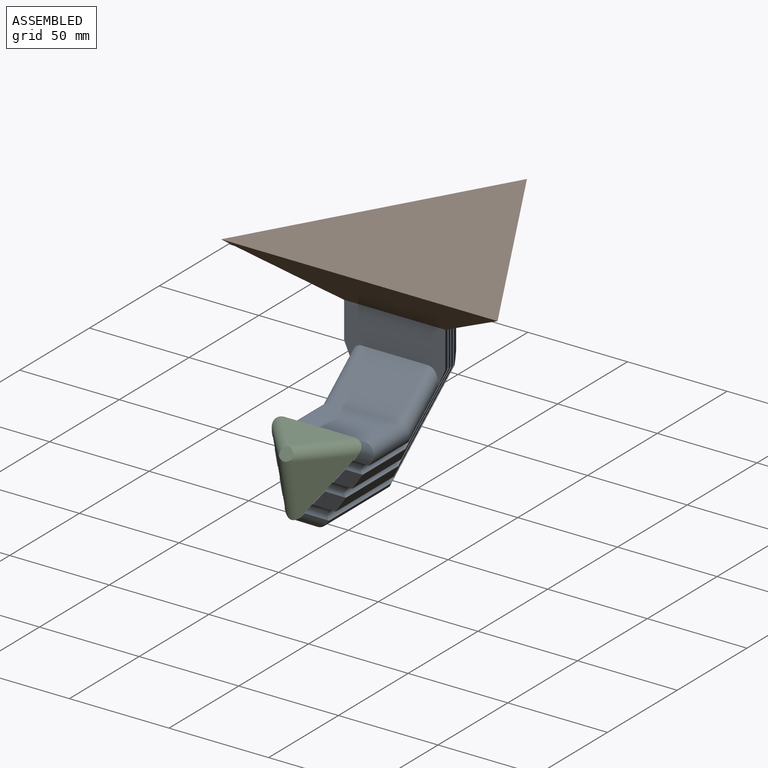
[diagram: assembled view]
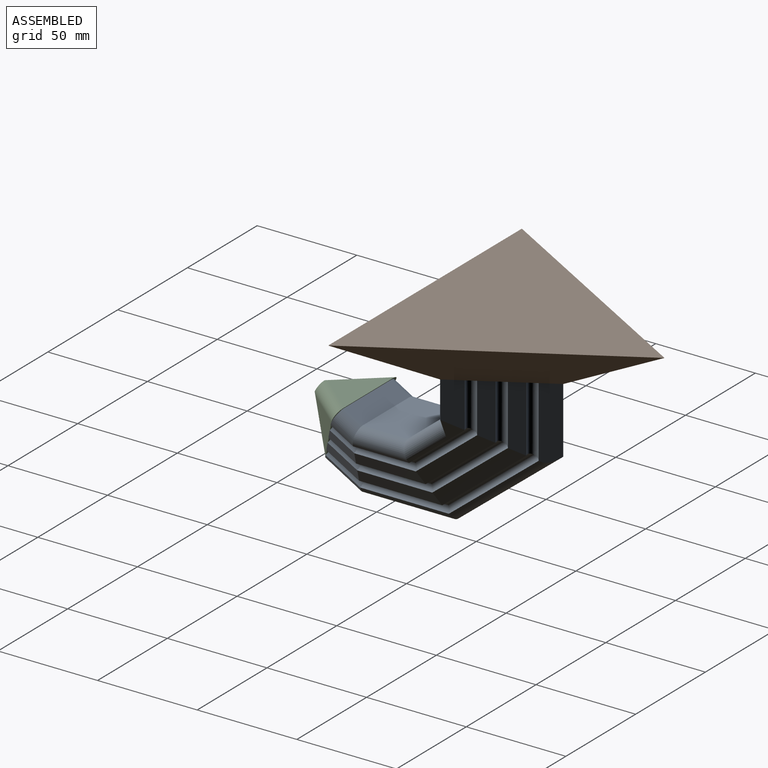
[diagram: assembled view, second angle]
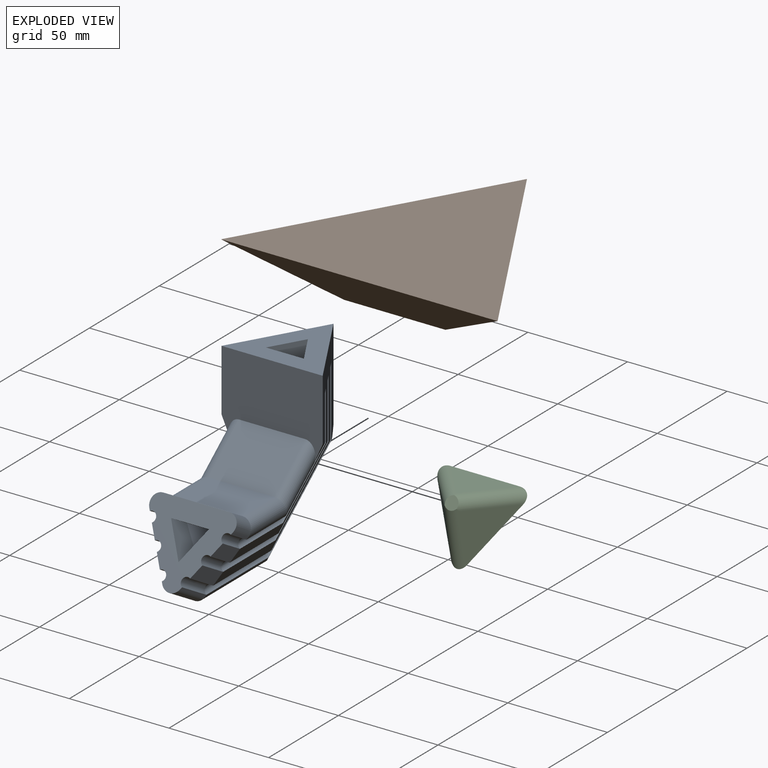
[diagram: exploded view]
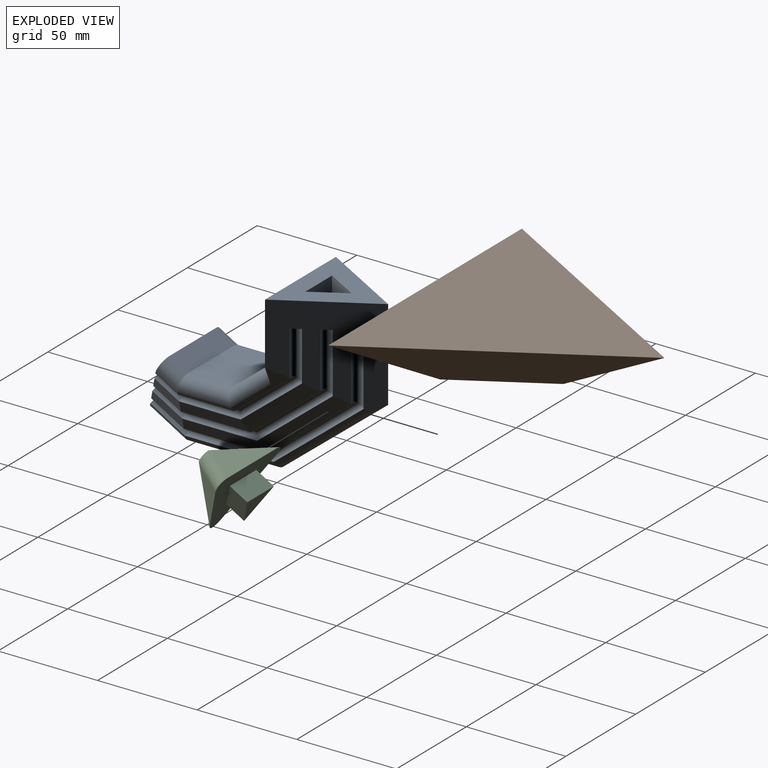
[diagram: exploded view, second angle]
ASSEMBLY  parts=3 mates=2
PART A: 83 faces, bbox 50.8x117.7x87.8 mm
  f0: plane 23.09x19.67mm, normal (-0.87,0.25,0.43), area 293.4mm2, adj f1,f2,f5,f12
  f1: plane 23.09x19.67mm, normal (0.87,0.25,0.43), area 293.4mm2, adj f0,f2,f4,f12
  f2: plane 19.05x11.42mm, normal (0,-0.5,-0.87), area 251.3mm2, adj f0,f1,f3,f12
  f3: plane 28.35x19.05mm, normal (0,0,-1), area 540mm2, adj f2,f4,f5,f6
  f4: plane 38.56x16.5mm, normal (0.87,0,0.5), area 637.2mm2, adj f1,f3,f5,f7
  f5: plane 38.56x16.5mm, normal (-0.87,0,0.5), area 637.2mm2, adj f0,f3,f4,f8
  f6: plane 28.18x22.54mm, normal (0,0.62,-0.78), area 687.5mm2, adj f3,f7,f8,f9
  f7: plane 44.68x39.04mm, normal (0.87,-0.31,0.39), area 818.1mm2, adj f4,f6,f8,f10
  f8: plane 44.68x39.04mm, normal (-0.87,-0.31,0.39), area 818.1mm2, adj f5,f6,f7,f11
  f9: plane 35.46x19.05mm, normal (0,1,0), area 675.5mm2, adj f6,f10,f11,f82
  f10: plane 43.39x16.5mm, normal (0.87,-0.5,0), area 751mm2, adj f7,f9,f11,f82
  f11: plane 43.39x16.5mm, normal (-0.87,-0.5,0), area 751mm2, adj f8,f9,f10,f82
  f12: plane 43.36x33.7mm, normal (0,-0.87,0.5), area 846.5mm2, adj f0,f1,f2,f13,f14,f15,f16,f17
  f13: cylinder r=2.54mm len=17.28mm, axis (0,-0.87,0.5), area 131mm2, adj f12,f14,f27,f42
  f14: plane 18.21x15.21mm, normal (-0.87,-0.25,-0.43), area 137.9mm2, adj f12,f13,f15,f41
  f15: cylinder r=2.54mm len=19.83mm, axis (0,-0.87,0.5), area 154.5mm2, adj f12,f14,f16,f40
  f16: plane 18.05x11.26mm, normal (-0.87,-0.25,-0.43), area 27.7mm2, adj f12,f15,f39,f75
  f17: plane 18.05x11.26mm, normal (0.87,-0.25,-0.43), area 27.7mm2, adj f12,f18,f38,f75
  f18: cylinder r=2.54mm len=19.83mm, axis (0,-0.87,0.5), area 154.5mm2, adj f12,f17,f19,f37
  f19: plane 18.21x15.21mm, normal (0.87,-0.25,-0.43), area 137.9mm2, adj f12,f18,f20,f36
  f20: cylinder r=2.54mm len=17.28mm, axis (0,-0.87,0.5), area 131mm2, adj f12,f19,f21,f35
  f21: plane 15.66x13.74mm, normal (0.87,-0.25,-0.43), area 115.5mm2, adj f12,f20,f22,f34
  f22: cylinder r=2.54mm len=14.73mm, axis (0,-0.87,0.5), area 107.5mm2, adj f12,f21,f23,f33
  f23: plane 11.65x7.57mm, normal (0.87,-0.25,-0.43), area 17.6mm2, adj f12,f22,f32,f72
  f24: plane 33.2x9.3mm, normal (0,0.5,0.87), area 356.4mm2, adj f12,f31,f69,f72
  f25: plane 11.65x7.57mm, normal (-0.87,-0.25,-0.43), area 17.6mm2, adj f12,f26,f30,f69
  f26: cylinder r=2.54mm len=14.73mm, axis (0,-0.87,0.5), area 107.5mm2, adj f12,f25,f27,f29
  f27: plane 15.66x13.74mm, normal (-0.87,-0.25,-0.43), area 115.5mm2, adj f12,f13,f26,f28
  f28: plane 34.93x6.6mm, normal (-0.87,0,-0.5), area 250.6mm2, adj f27,f29,f42,f43
  f29: cylinder r=2.54mm len=30.84mm, axis (0,-1,0), area 231.3mm2, adj f26,f28,f30,f44
  f30: plane 28.12x1.18mm, normal (-0.87,0,-0.5), area 37.8mm2, adj f25,f29,f45,f68
  f31: plane 33.2x22.68mm, normal (0,0,1), area 752.9mm2, adj f24,f46,f68,f71
  f32: plane 28.12x1.18mm, normal (0.87,0,-0.5), area 37.8mm2, adj f23,f33,f47,f71
  f33: cylinder r=2.54mm len=30.84mm, axis (0,-1,0), area 231.3mm2, adj f22,f32,f34,f48
  f34: plane 34.93x6.6mm, normal (0.87,0,-0.5), area 250.6mm2, adj f21,f33,f35,f49
  f35: cylinder r=2.54mm len=37.65mm, axis (0,-1,0), area 285.6mm2, adj f20,f34,f36,f50
  f36: plane 41.73x6.6mm, normal (0.87,0,-0.5), area 302.4mm2, adj f19,f35,f37,f51
  f37: cylinder r=2.54mm len=44.45mm, axis (0,-1,0), area 339.9mm2, adj f18,f36,f38,f52
  f38: plane 45.18x1.18mm, normal (0.87,0,-0.5), area 61mm2, adj f17,f37,f53,f74
  f39: plane 45.18x1.18mm, normal (-0.87,0,-0.5), area 61mm2, adj f16,f40,f54,f74
  f40: cylinder r=2.54mm len=44.45mm, axis (0,-1,0), area 339.9mm2, adj f15,f39,f41,f55
  f41: plane 41.73x6.6mm, normal (-0.87,0,-0.5), area 302.4mm2, adj f14,f40,f42,f56
  f42: cylinder r=2.54mm len=37.65mm, axis (0,-1,0), area 285.6mm2, adj f13,f28,f41,f57
  f43: plane 37.4x31.24mm, normal (-0.87,0.31,-0.39), area 321.4mm2, adj f28,f44,f57,f65
  f44: cylinder r=2.54mm len=33.76mm, axis (0,-0.78,-0.62), area 294.8mm2, adj f29,f43,f45,f58
  f45: plane 28.36x26.58mm, normal (-0.87,0.31,-0.39), area 91mm2, adj f30,f44,f59,f65,f67
  f46: plane 33.2x22.23mm, normal (0,-0.62,0.78), area 945.2mm2, adj f31,f59,f67,f70
  f47: plane 28.36x26.58mm, normal (0.87,0.31,-0.39), area 91mm2, adj f32,f48,f59,f63,f70
  f48: cylinder r=2.54mm len=33.76mm, axis (0,-0.78,-0.62), area 294.8mm2, adj f33,f47,f49,f60
  f49: plane 37.4x31.24mm, normal (0.87,0.31,-0.39), area 321.4mm2, adj f34,f48,f50,f63
  f50: cylinder r=2.54mm len=40.9mm, axis (0,-0.78,-0.62), area 367.7mm2, adj f35,f49,f51,f61
  f51: plane 44.54x36.95mm, normal (0.87,0.31,-0.39), area 391.1mm2, adj f36,f50,f52,f63
  f52: cylinder r=2.54mm len=48.04mm, axis (0,-0.78,-0.62), area 440.7mm2, adj f37,f51,f53,f62
  f53: plane 46.26x37.24mm, normal (0.87,0.31,-0.39), area 79.2mm2, adj f38,f52,f63,f73
  f54: plane 46.26x37.24mm, normal (-0.87,0.31,-0.39), area 79.2mm2, adj f39,f55,f65,f73
  f55: cylinder r=2.54mm len=48.04mm, axis (0,-0.78,-0.62), area 440.7mm2, adj f40,f54,f56,f64
  f56: plane 44.54x36.95mm, normal (-0.87,0.31,-0.39), area 391.1mm2, adj f41,f55,f57,f65
  f57: cylinder r=2.54mm len=40.9mm, axis (0,-0.78,-0.62), area 367.7mm2, adj f42,f43,f56,f66
  f58: cylinder r=2.54mm len=24.7mm, axis (0,0,-1), area 185.5mm2, adj f44,f65,f76
  f59: plane 50.8x40.81mm, normal (0,-1,0), area 1622.7mm2, adj f45,f46,f47,f63,f65,f67,f70,f82
  f60: cylinder r=2.54mm len=24.7mm, axis (0,0,-1), area 185.5mm2, adj f48,f63,f77
  f61: cylinder r=2.54mm len=29.98mm, axis (0,0,-1), area 227.7mm2, adj f50,f63,f78
  f62: cylinder r=2.54mm len=35.27mm, axis (0,0,-1), area 269.9mm2, adj f52,f63,f79
  f63: plane 48.77x43.99mm, normal (0.87,0.5,0), area 1651.1mm2, adj f47,f49,f51,f53,f59,f60,f61,f62
  f64: cylinder r=2.54mm len=35.27mm, axis (0,0,-1), area 269.9mm2, adj f55,f65,f80
  f65: plane 48.77x43.99mm, normal (-0.87,0.5,0), area 1651.1mm2, adj f43,f45,f54,f56,f58,f59,f63,f64
  f66: cylinder r=2.54mm len=29.98mm, axis (0,0,-1), area 227.7mm2, adj f57,f65,f81
  f67: cylinder r=5.08mm len=29.08mm, axis (0,-0.78,-0.62), area 288.6mm2, adj f45,f46,f59,f68
  f68: cylinder r=5.08mm len=27.39mm, axis (0,-1,0), area 260.9mm2, adj f30,f31,f67,f69
  f69: cylinder r=5.08mm len=14.88mm, axis (0,-0.87,0.5), area 122.7mm2, adj f12,f24,f25,f68
  f70: cylinder r=5.08mm len=29.08mm, axis (0,-0.78,-0.62), area 288.6mm2, adj f46,f47,f59,f71
  f71: cylinder r=5.08mm len=27.39mm, axis (0,-1,0), area 260.9mm2, adj f31,f32,f70,f72
  f72: cylinder r=5.08mm len=14.88mm, axis (0,-0.87,0.5), area 122.7mm2, adj f12,f23,f24,f71
  f73: cylinder r=5.08mm len=54.16mm, axis (0,-0.78,-0.62), area 663.3mm2, adj f53,f54,f63,f65,f74
  f74: cylinder r=5.08mm len=46.76mm, axis (0,-1,0), area 491.7mm2, adj f38,f39,f73,f75
  f75: cylinder r=5.08mm len=19.6mm, axis (0,-0.87,0.5), area 222.7mm2, adj f12,f16,f17,f74
  f76: plane 4.74x3.81mm, normal (0,0,-1), area 10.1mm2, adj f58,f65
  f77: plane 4.74x3.81mm, normal (0,0,-1), area 10.1mm2, adj f60,f63
  f78: plane 4.74x3.81mm, normal (0,0,-1), area 10.1mm2, adj f61,f63
  f79: plane 4.74x3.81mm, normal (0,0,-1), area 10.1mm2, adj f62,f63
  f80: plane 4.74x3.81mm, normal (0,0,-1), area 10.1mm2, adj f64,f65
  f81: plane 4.74x3.81mm, normal (0,0,-1), area 10.1mm2, adj f65,f66
  f82: plane 50.8x43.99mm, normal (0,0,1), area 960.3mm2, adj f9,f10,f11,f59,f63,f65
PART B: 8 faces, bbox 138.8x120.2x25.4 mm
  f0: plane 120.19x69.39mm, normal (-0.61,0.35,-0.71), area 3405.1mm2, adj f1,f2,f3,f5
  f1: plane 138.79x25.4mm, normal (0,-0.71,-0.71), area 3405.1mm2, adj f0,f2,f3,f6
  f2: plane 120.19x69.39mm, normal (0.61,0.35,-0.71), area 3405.1mm2, adj f0,f1,f3,f4
  f3: plane 138.79x120.19mm, normal (0,0,1), area 8340.8mm2, adj f0,f1,f2
  f4: plane 43.99x25.4mm, normal (-0.87,-0.5,0), area 645.2mm2, adj f2,f5,f6,f7
  f5: plane 43.99x25.4mm, normal (0.87,-0.5,0), area 645.2mm2, adj f0,f4,f6,f7
  f6: plane 50.8x12.7mm, normal (0,1,0), area 645.2mm2, adj f1,f4,f5,f7
  f7: plane 50.8x43.99mm, normal (0,0,-1), area 1117.4mm2, adj f4,f5,f6
PART C: 12 faces, bbox 45.6x29.9x40.6 mm
  f0: plane 30.14x17.4mm, normal (-0.75,-0.5,0.43), area 349.6mm2, adj f4,f9,f11
  f1: plane 34.8x17.4mm, normal (0,-0.5,-0.87), area 349.6mm2, adj f4,f10,f11
  f2: plane 30.14x17.4mm, normal (0.75,-0.5,0.43), area 349.6mm2, adj f4,f9,f10
  f3: plane 6.64x6.45mm, normal (0,-1,0), area 33.2mm2, adj f9,f10,f11
  f4: plane 44.55x39.82mm, normal (0,1,0), area 923mm2, adj f0,f1,f2,f5,f6,f7,f9,f10
  f5: plane 16.5x10.16mm, normal (0.87,0,0.5), area 193.5mm2, adj f4,f6,f7,f8
  f6: plane 16.5x10.16mm, normal (-0.87,0,0.5), area 193.5mm2, adj f4,f5,f7,f8
  f7: plane 19.05x10.16mm, normal (0,0,-1), area 193.5mm2, adj f4,f5,f6,f8
  f8: plane 19.05x16.5mm, normal (0,1,0), area 157.1mm2, adj f5,f6,f7
  f9: cylinder r=5.33mm len=24mm, axis (0,0.65,0.76), area 260mm2, adj f0,f2,f3,f4,f10,f11
  f10: cylinder r=5.33mm len=23.79mm, axis (0.65,0.65,-0.38), area 260mm2, adj f1,f2,f3,f4,f9,f11
  f11: cylinder r=5.33mm len=23.79mm, axis (-0.65,0.65,-0.38), area 260mm2, adj f0,f1,f3,f4,f9,f10
PLACE A t=(-7.75,8.94,87.64)mm
PLACE B t=(-7.75,8.94,87.64)mm
PLACE C rot(axis=(0,-0.97,0.26),180deg) t=(-7.75,-67.02,44.59)mm
MATE pin_slot C.f4 <-> A.f12  axis (0,0.87,-0.5) through (-7.75,-67.02,44.59)mm
MATE fastened A.f82 <-> B.f7  axis (0,0,1) through (-7.75,8.94,100.34)mm
